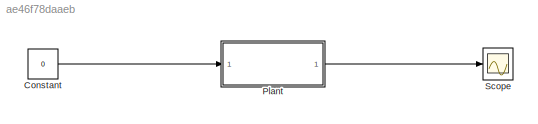
MODEL slx_ae46f78daaeb
KIND model
CONFIG AbsTol = auto
CONFIG EnableMultiTasking = off
CONFIG FixedStep = auto
CONFIG MaxStep = auto
CONFIG MinStep = auto
CONFIG RelTol = 1e-3
CONFIG SampleTimeConstraint = Unconstrained
CONFIG Solver = ode23tb
CONFIG SolverName = ode23tb
CONFIG StartTime = 0.0
CONFIG StopTime = 10.0
BLOCK [Constant] Constant
  Value = 0
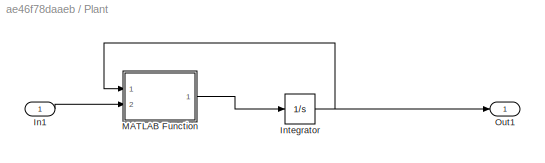
BLOCK [SubSystem] Plant
  Ports = [1, 1]
  RequestExecContextInheritance = off
  Variant = off
BLOCK [Inport] Plant/In1
  IconDisplay = Port number
BLOCK [Integrator] Plant/Integrator
  InitialCondition = x0
  Ports = [1, 1]
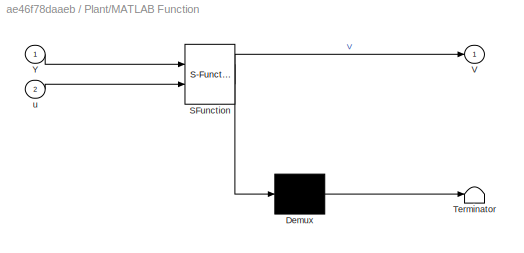
BLOCK [SubSystem] Plant/MATLAB Function
  ErrorFcn = Stateflow.Translate.translate
  PermitHierarchicalResolution = ExplicitOnly
  Ports = [2, 1]
  RequestExecContextInheritance = off
  SFBlockType = MATLAB Function
  TreatAsAtomicUnit = on
  Variant = off
BLOCK [Demux] Plant/MATLAB Function/ Demux 
  Outputs = 1
  Ports = [1, 1]
BLOCK [S-Function] Plant/MATLAB Function/ SFunction 
  EnableBusSupport = on
  FunctionName = sf_sfun
  PortCounts = [2 2]
  Ports = [2, 2]
  SFcnIsStateOwnerBlock = off
  SFunctionDeploymentMode = off
  Tag = Stateflow S-Function linearizeMdl 2
BLOCK [Terminator] Plant/MATLAB Function/ Terminator 
BLOCK [Outport] Plant/MATLAB Function/V
  IconDisplay = Port number
BLOCK [Inport] Plant/MATLAB Function/Y
  IconDisplay = Port number
BLOCK [Inport] Plant/MATLAB Function/u
  IconDisplay = Port number
  Port = 2
BLOCK [Outport] Plant/Out1
  IconDisplay = Port number
BLOCK [Scope] Scope
  NumInputPorts = 1
  Ports = [1]
  ScopeSpecificationString = Simulink.scopes.TimeScopeBlockCfg('CurrentConfiguration', extmgr.ConfigurationSet(extmgr.Configuration('Core','General UI',true),extmgr.Configuration('Core','Source UI',true),extmgr.Configuration('Sources','WiredSimulink',true),extmgr.Configuration('Visuals','Time Domain',true,'SerializedDisplays',{struct('MinYLimReal','-21.63058','MaxYLimReal','24.3781','YLabelReal','','MinYLimMag','0.00000','Max...<+1386ch>
LINE Constant:1 -> Plant:1
LINE Plant/In1:1 -> Plant/MATLAB Function:2
NET Plant/Integrator:1 -> Plant/MATLAB Function:1, Plant/Out1:1
LINE Plant/MATLAB Function:1 -> Plant/Integrator:1
LINE Plant:1 -> Scope:1
note: NET lines group one-source signal fan-out (src -> all destinations, sorted); 1:1 wires keep LINE
CHART Plant/MATLAB Function states=1 transitions=1
  STATE_LABEL 'eML_blk_kernel()'
  STATE_LABEL 'SCRIPT:\nfunction V = M(Y,u)\n%M\n%    V = M(Y,U)\n\n%    This function was generated by the Symbolic Math Toolbox version 8.0.\n%    09-May-2018 10:56:52\n\nt3 = Y(1);\nt4 = Y(3);\nt5 = t3-t4;\nt2 = cos(t5);\nt6 = t2.^2;\nt7 = t6.*7.29e-8;\nt8 = t7-8.854411999999999e-6;\nt9 = 1.0./t8;\nt10 = Y(2);\nt11 = Y(4);\nt12 = cos(t4);\nt13 = cos(t3);\nt14 = sin(t5);\nt15 = t10.^2;\nt16 = t3.*2.0;\nt17 = t4.*-2.0+t16;\nt18 = sin(...<+371ch>'
